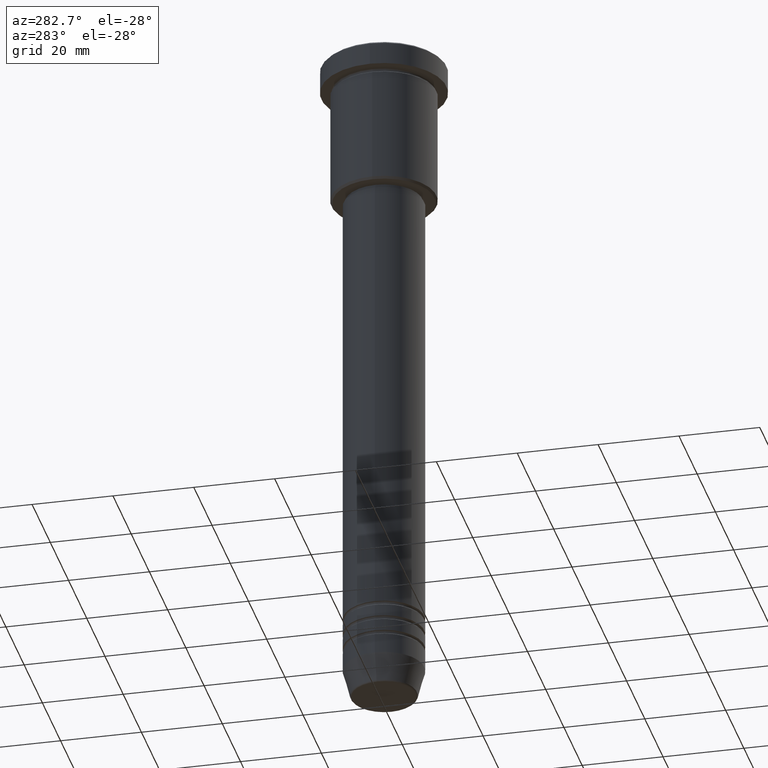
[diagram: clean part render]
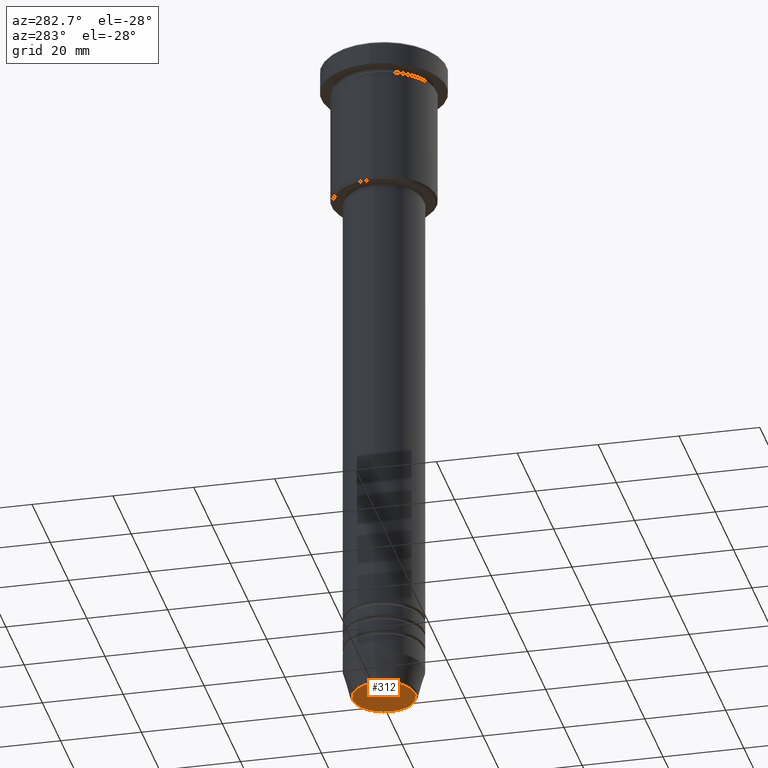
[diagram: same view with one face highlighted and labeled with its STEP entity id]
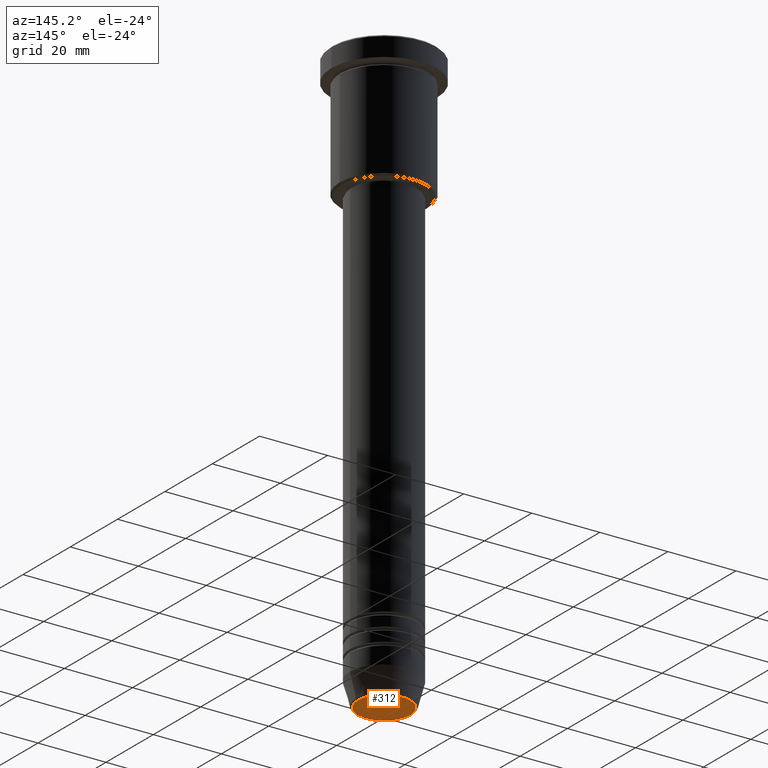
[diagram: same view with one face highlighted and labeled with its STEP entity id]
A machine part, auxiliary view. The second image highlights one B-rep face of the part: STEP entity #312.
A second angle (auxiliary view) of the same face is appended — the face is thin or edge-on in the first view.
In plain terms, the highlighted planar face has unit normal (0, -0, 1).
Its self-contained STEP definition (entity closure, byte-faithful):
#14 = CARTESIAN_POINT ( 'NONE',  ( 0.000000000000000000, 0.000000000000000000, -171.0000000000000284 ) ) ;
#24 = ORIENTED_EDGE ( 'NONE', *, *, #543, .T. ) ;
#146 = CARTESIAN_POINT ( 'NONE',  ( -7.740692158992660055, 9.775343368540039135E-16, -171.0000000000000284 ) ) ;
#205 = CIRCLE ( 'NONE', #398, 7.740692158992660055 ) ;
#312 = ADVANCED_FACE ( 'NONE', ( #714 ), #354, .F. ) ;
#314 = VERTEX_POINT ( 'NONE', #721 ) ;
#348 = DIRECTION ( 'NONE',  ( 0.000000000000000000, -0.000000000000000000, 1.000000000000000000 ) ) ;
#354 = PLANE ( 'NONE',  #619 ) ;
#398 = AXIS2_PLACEMENT_3D ( 'NONE', #14, #1108, #1013 ) ;
#417 = EDGE_CURVE ( 'NONE', #314, #1036, #205, .T. ) ;
#519 = DIRECTION ( 'NONE',  ( 1.000000000000000000, 0.000000000000000000, 0.000000000000000000 ) ) ;
#543 = EDGE_CURVE ( 'NONE', #1036, #314, #1161, .T. ) ;
#614 = CARTESIAN_POINT ( 'NONE',  ( 0.000000000000000000, 0.000000000000000000, -171.0000000000000284 ) ) ;
#619 = AXIS2_PLACEMENT_3D ( 'NONE', #622, #348, #634 ) ;
#622 = CARTESIAN_POINT ( 'NONE',  ( 0.000000000000000000, 0.000000000000000000, -171.0000000000000284 ) ) ;
#634 = DIRECTION ( 'NONE',  ( 1.000000000000000000, 0.000000000000000000, 0.000000000000000000 ) ) ;
#640 = AXIS2_PLACEMENT_3D ( 'NONE', #614, #1079, #519 ) ;
#714 = FACE_OUTER_BOUND ( 'NONE', #950, .T. ) ;
#721 = CARTESIAN_POINT ( 'NONE',  ( 7.740692158992660055, 0.000000000000000000, -171.0000000000000284 ) ) ;
#910 = ORIENTED_EDGE ( 'NONE', *, *, #417, .T. ) ;
#950 = EDGE_LOOP ( 'NONE', ( #910, #24 ) ) ;
#1013 = DIRECTION ( 'NONE',  ( 1.000000000000000000, 0.000000000000000000, 0.000000000000000000 ) ) ;
#1036 = VERTEX_POINT ( 'NONE', #146 ) ;
#1079 = DIRECTION ( 'NONE',  ( 0.000000000000000000, 0.000000000000000000, -1.000000000000000000 ) ) ;
#1108 = DIRECTION ( 'NONE',  ( 0.000000000000000000, 0.000000000000000000, -1.000000000000000000 ) ) ;
#1161 = CIRCLE ( 'NONE', #640, 7.740692158992660055 ) ;